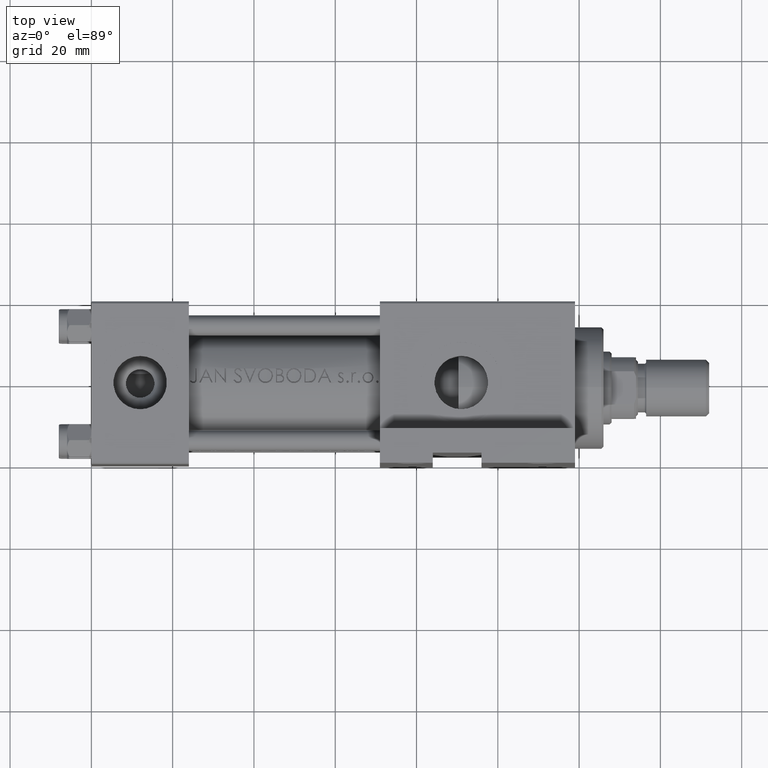
[diagram: clean part render]
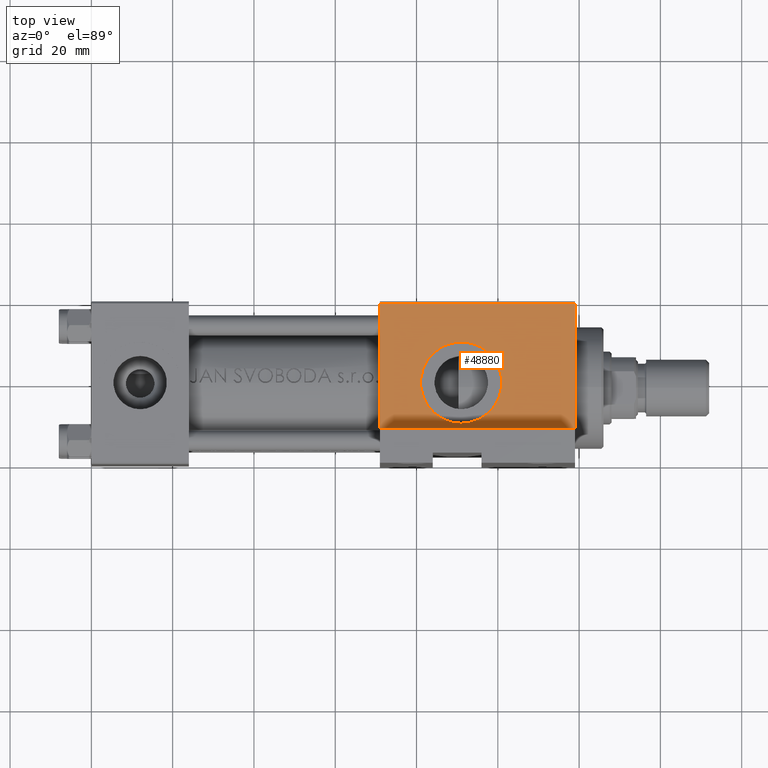
[diagram: same view with one face highlighted and labeled with its STEP entity id]
A machine part, top view. The second image highlights one B-rep face of the part: STEP entity #48880.
In plain terms, the highlighted planar face has unit normal (0, 0, -1).
Its self-contained STEP definition (entity closure, byte-faithful):
#896 = DIRECTION ( 'NONE',  ( 0.000000000000000000, -1.000000000000000000, -8.673617379884036705E-17 ) ) ;
#1255 = LINE ( 'NONE', #23675, #33186 ) ;
#1975 = DIRECTION ( 'NONE',  ( -0.000000000000000000, 1.000000000000000000, 8.673617379884036705E-17 ) ) ;
#3192 = DIRECTION ( 'NONE',  ( 0.000000000000000000, 8.673617379884036705E-17, -1.000000000000000000 ) ) ;
#4024 = CARTESIAN_POINT ( 'NONE',  ( 91.00000000000001421, -20.00000000000000355, -1.734723475976807883E-15 ) ) ;
#4723 = EDGE_CURVE ( 'NONE', #44277, #49756, #27775, .T. ) ;
#5300 = VECTOR ( 'NONE', #43936, 1000.000000000000000 ) ;
#7350 = CARTESIAN_POINT ( 'NONE',  ( 71.00000000000001421, -20.00000000000000355, 19.50000000000002487 ) ) ;
#7979 = VERTEX_POINT ( 'NONE', #22800 ) ;
#8176 = ORIENTED_EDGE ( 'NONE', *, *, #37409, .T. ) ;
#8969 = CARTESIAN_POINT ( 'NONE',  ( 71.00000000000001421, -20.00000000000000355, 19.99999999999999645 ) ) ;
#9598 = CIRCLE ( 'NONE', #16022, 9.999999999999994671 ) ;
#10323 = VECTOR ( 'NONE', #3192, 1000.000000000000000 ) ;
#10382 = VERTEX_POINT ( 'NONE', #11419 ) ;
#11419 = CARTESIAN_POINT ( 'NONE',  ( 71.00000000000001421, -20.00000000000000355, -11.50000000000000000 ) ) ;
#12558 = DIRECTION ( 'NONE',  ( 0.000000000000000000, 0.000000000000000000, -1.000000000000000000 ) ) ;
#12788 = DIRECTION ( 'NONE',  ( 0.000000000000000000, -8.673617379884036705E-17, 1.000000000000000000 ) ) ;
#14286 = VERTEX_POINT ( 'NONE', #7350 ) ;
#15212 = ORIENTED_EDGE ( 'NONE', *, *, #44840, .T. ) ;
#15269 = LINE ( 'NONE', #37685, #10323 ) ;
#16022 = AXIS2_PLACEMENT_3D ( 'NONE', #20029, #896, #47182 ) ;
#16128 = VERTEX_POINT ( 'NONE', #17643 ) ;
#16611 = DIRECTION ( 'NONE',  ( 1.000000000000000000, -7.228014483236698281E-17, 0.000000000000000000 ) ) ;
#17078 = CARTESIAN_POINT ( 'NONE',  ( 119.0000000000000142, -20.00000000000000355, 19.99999999999999645 ) ) ;
#17643 = CARTESIAN_POINT ( 'NONE',  ( 119.0000000000000142, -20.00000000000000355, 19.50000000000002487 ) ) ;
#20029 = CARTESIAN_POINT ( 'NONE',  ( 91.00000000000001421, -20.00000000000000355, -1.734723475976807883E-15 ) ) ;
#22800 = CARTESIAN_POINT ( 'NONE',  ( 119.0000000000000142, -20.00000000000000000, -11.50000000000000355 ) ) ;
#23675 = CARTESIAN_POINT ( 'NONE',  ( 71.00000000000001421, -20.00000000000000355, -11.50000000000000000 ) ) ;
#24141 = AXIS2_PLACEMENT_3D ( 'NONE', #17078, #1975, #12788 ) ;
#26123 = EDGE_CURVE ( 'NONE', #14286, #10382, #28342, .T. ) ;
#27775 = CIRCLE ( 'NONE', #34226, 9.999999999999994671 ) ;
#28342 = LINE ( 'NONE', #8969, #5300 ) ;
#29149 = FACE_BOUND ( 'NONE', #30076, .T. ) ;
#30076 = EDGE_LOOP ( 'NONE', ( #40157, #32297 ) ) ;
#30746 = ORIENTED_EDGE ( 'NONE', *, *, #33248, .F. ) ;
#32297 = ORIENTED_EDGE ( 'NONE', *, *, #38920, .F. ) ;
#33165 = LINE ( 'NONE', #44731, #39424 ) ;
#33186 = VECTOR ( 'NONE', #16611, 1000.000000000000000 ) ;
#33248 = EDGE_CURVE ( 'NONE', #16128, #7979, #15269, .T. ) ;
#34226 = AXIS2_PLACEMENT_3D ( 'NONE', #4024, #47028, #12558 ) ;
#36893 = EDGE_LOOP ( 'NONE', ( #30746, #15212, #38373, #8176 ) ) ;
#37409 = EDGE_CURVE ( 'NONE', #10382, #7979, #1255, .T. ) ;
#37685 = CARTESIAN_POINT ( 'NONE',  ( 119.0000000000000142, -20.00000000000000355, 19.99999999999999645 ) ) ;
#38373 = ORIENTED_EDGE ( 'NONE', *, *, #26123, .T. ) ;
#38920 = EDGE_CURVE ( 'NONE', #49756, #44277, #9598, .T. ) ;
#39424 = VECTOR ( 'NONE', #48744, 1000.000000000000000 ) ;
#40157 = ORIENTED_EDGE ( 'NONE', *, *, #4723, .F. ) ;
#43671 = CARTESIAN_POINT ( 'NONE',  ( 91.00000000000001421, -20.00000000000000355, -9.999999999999996447 ) ) ;
#43738 = PLANE ( 'NONE',  #24141 ) ;
#43936 = DIRECTION ( 'NONE',  ( 0.000000000000000000, 8.673617379884036705E-17, -1.000000000000000000 ) ) ;
#44277 = VERTEX_POINT ( 'NONE', #43671 ) ;
#44483 = FACE_OUTER_BOUND ( 'NONE', #36893, .T. ) ;
#44731 = CARTESIAN_POINT ( 'NONE',  ( 119.0000000000000142, -20.00000000000000355, 19.50000000000002487 ) ) ;
#44840 = EDGE_CURVE ( 'NONE', #16128, #14286, #33165, .T. ) ;
#46841 = CARTESIAN_POINT ( 'NONE',  ( 91.00000000000001421, -20.00000000000000355, 9.999999999999992895 ) ) ;
#47028 = DIRECTION ( 'NONE',  ( 0.000000000000000000, -1.000000000000000000, -8.673617379884036705E-17 ) ) ;
#47182 = DIRECTION ( 'NONE',  ( 0.000000000000000000, 0.000000000000000000, -1.000000000000000000 ) ) ;
#48744 = DIRECTION ( 'NONE',  ( -1.000000000000000000, 0.000000000000000000, 0.000000000000000000 ) ) ;
#48880 = ADVANCED_FACE ( 'NONE', ( #29149, #44483 ), #43738, .F. ) ;
#49756 = VERTEX_POINT ( 'NONE', #46841 ) ;